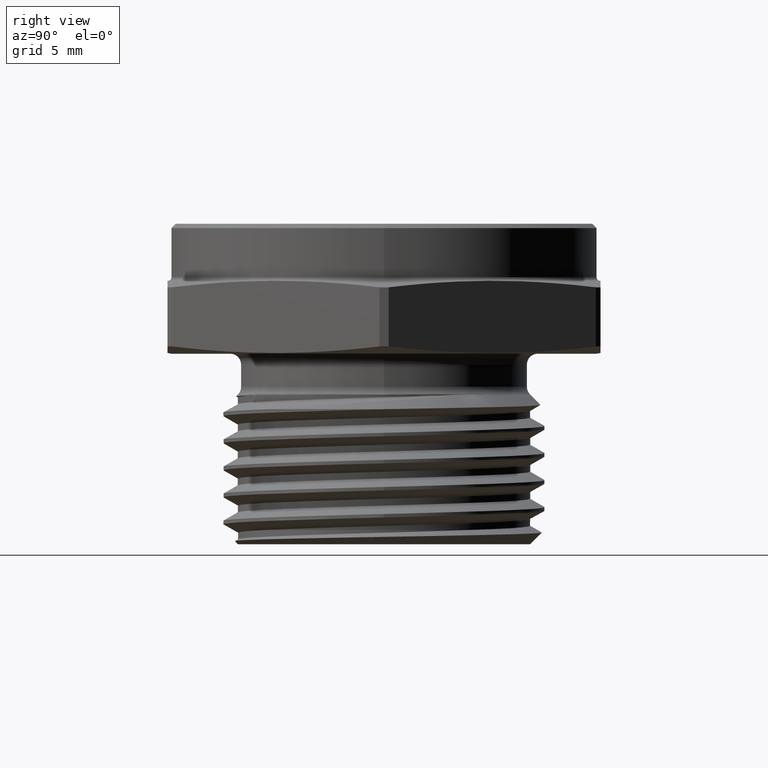
[diagram: clean part render]
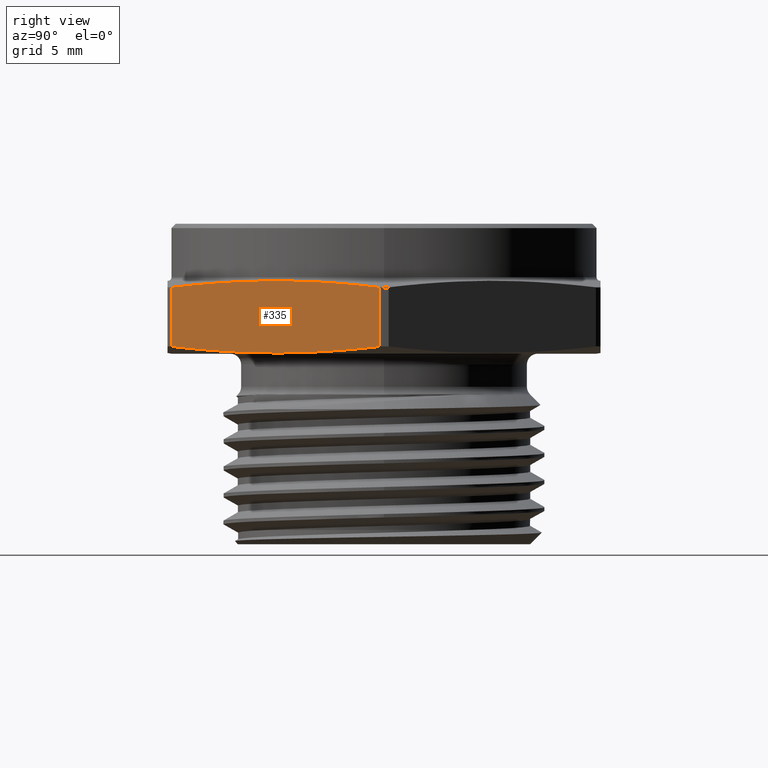
[diagram: same view with one face highlighted and labeled with its STEP entity id]
A machine part, right view. The second image highlights one B-rep face of the part: STEP entity #335.
In plain terms, the highlighted planar face has unit normal (-0.866, 0.5, 0).
Its self-contained STEP definition (entity closure, byte-faithful):
#24 = EDGE_LOOP ( 'NONE', ( #2526, #2527, #2528, #2529 ) ) ;
#235 = AXIS2_PLACEMENT_3D ( 'NONE', #1294, #1298, #1299 ) ;
#335 = ADVANCED_FACE ( 'NONE', ( #2148 ), #1292, .F. ) ;
#710 = CARTESIAN_POINT ( 'NONE',  ( 0.5712526473702337300, -0.01056139079652691400, -1.692951067439543800E-017 ) ) ;
#711 = DIRECTION ( 'NONE',  ( -1.224646799147349800E-016, -0.0000000000000000000, -1.000000000000000000 ) ) ;
#715 = CARTESIAN_POINT ( 'NONE',  ( 0.3178127473272076000, -0.4495321743362270500, 0.1579795259698087200 ) ) ;
#716 = CARTESIAN_POINT ( 'NONE',  ( 0.3408527382402100100, -0.4096257394689814500, 0.1618085153259697400 ) ) ;
#720 = CARTESIAN_POINT ( 'NONE',  ( 0.5251726655442291400, -0.09037426053101783900, 0.008191484674030307900 ) ) ;
#721 = CARTESIAN_POINT ( 'NONE',  ( 0.2947727564142051900, -0.4894386092034723700, 0.1532398578942974800 ) ) ;
#723 = CARTESIAN_POINT ( 'NONE',  ( 0.3869327200662148200, -0.3298128697344906400, 0.1670286922057679400 ) ) ;
#724 = CARTESIAN_POINT ( 'NONE',  ( 0.4330127018922195200, -0.2499999999999997200, 0.1697829593691818100 ) ) ;
#725 = CARTESIAN_POINT ( 'NONE',  ( 0.4790926837182244400, -0.1701871302655087700, 0.1670286922057679400 ) ) ;
#726 = CARTESIAN_POINT ( 'NONE',  ( 0.5251726655442292600, -0.09037426053101786600, 0.1618085153259696800 ) ) ;
#727 = CARTESIAN_POINT ( 'NONE',  ( 0.5482126564572313800, -0.05046782566377243400, 0.1579795259698086900 ) ) ;
#728 = CARTESIAN_POINT ( 'NONE',  ( 0.5712526473702339600, -0.01056139079652691800, 0.1532398578942974500 ) ) ;
#729 = CARTESIAN_POINT ( 'NONE',  ( 0.2947727564142051900, -0.4894386092034723700, 1.692951067439543800E-017 ) ) ;
#730 = CARTESIAN_POINT ( 'NONE',  ( 0.5482126564572312700, -0.05046782566377239200, 0.01202047403019134400 ) ) ;
#731 = DIRECTION ( 'NONE',  ( 1.224646799147349800E-016, 0.0000000000000000000, 1.000000000000000000 ) ) ;
#733 = CARTESIAN_POINT ( 'NONE',  ( 0.5712526473702339600, -0.01056139079652691800, 0.01676014210570252900 ) ) ;
#734 = CARTESIAN_POINT ( 'NONE',  ( 0.4790926837182242800, -0.1701871302655086600, 0.002971307794232091800 ) ) ;
#735 = CARTESIAN_POINT ( 'NONE',  ( 0.4330127018922196900, -0.2499999999999995300, 0.0002170406308182330700 ) ) ;
#736 = CARTESIAN_POINT ( 'NONE',  ( 0.3869327200662147100, -0.3298128697344907000, 0.002971307794232114400 ) ) ;
#737 = CARTESIAN_POINT ( 'NONE',  ( 0.3408527382402099000, -0.4096257394689815100, 0.008191484674030337400 ) ) ;
#738 = CARTESIAN_POINT ( 'NONE',  ( 0.3178127473272076000, -0.4495321743362270000, 0.01202047403019136100 ) ) ;
#739 = CARTESIAN_POINT ( 'NONE',  ( 0.2947727564142051900, -0.4894386092034723700, 0.01676014210570252900 ) ) ;
#857 = LINE ( 'NONE', #710, #859 ) ;
#858 = LINE ( 'NONE', #729, #862 ) ;
#859 = VECTOR ( 'NONE', #711, 39.37007874015748100 ) ;
#862 = VECTOR ( 'NONE', #731, 39.37007874015748100 ) ;
#927 = B_SPLINE_CURVE_WITH_KNOTS ( 'NONE', 3,
 ( #721, #715, #716, #723, #724, #725, #726, #727, #728 ),
 .UNSPECIFIED., .F., .F.,
 ( 4, 2, 1, 2, 4 ),
 ( 1.944233093217346600E-006, 0.003513238848234785900, 0.007024533463376355000, 0.01053582807851792400, 0.01404712269365949100 ),
 .UNSPECIFIED. ) ;
#928 = B_SPLINE_CURVE_WITH_KNOTS ( 'NONE', 3,
 ( #733, #730, #720, #734, #735, #736, #737, #738, #739 ),
 .UNSPECIFIED., .F., .F.,
 ( 4, 2, 1, 2, 4 ),
 ( 1.944233093211303800E-006, 0.003513238848234779800, 0.007024533463376348900, 0.01053582807851791800, 0.01404712269365948600 ),
 .UNSPECIFIED. ) ;
#1292 = PLANE ( 'NONE',  #235 ) ;
#1294 = CARTESIAN_POINT ( 'NONE',  ( 0.2886751345948131400, -0.5000000000000001100, 0.1699999999999999800 ) ) ;
#1298 = DIRECTION ( 'NONE',  ( -0.8660254037844391500, 0.4999999999999993900, 0.0000000000000000000 ) ) ;
#1299 = DIRECTION ( 'NONE',  ( -0.4999999999999993900, -0.8660254037844391500, 0.0000000000000000000 ) ) ;
#1828 = CARTESIAN_POINT ( 'NONE',  ( 0.5712526473702339600, -0.01056139079652691800, 0.01676014210570252900 ) ) ;
#1852 = CARTESIAN_POINT ( 'NONE',  ( 0.2947727564142051900, -0.4894386092034723700, 0.01676014210570252900 ) ) ;
#1859 = CARTESIAN_POINT ( 'NONE',  ( 0.5712526473702339600, -0.01056139079652691800, 0.1532398578942974500 ) ) ;
#1870 = CARTESIAN_POINT ( 'NONE',  ( 0.2947727564142051900, -0.4894386092034723700, 0.1532398578942974800 ) ) ;
#2148 = FACE_OUTER_BOUND ( 'NONE', #24, .T. ) ;
#2411 = EDGE_CURVE ( 'NONE', #2966, #2486, #857, .T. ) ;
#2412 = EDGE_CURVE ( 'NONE', #2978, #2966, #927, .T. ) ;
#2413 = EDGE_CURVE ( 'NONE', #2957, #2978, #858, .T. ) ;
#2414 = EDGE_CURVE ( 'NONE', #2486, #2957, #928, .T. ) ;
#2486 = VERTEX_POINT ( 'NONE', #1828 ) ;
#2526 = ORIENTED_EDGE ( 'NONE', *, *, #2411, .F. ) ;
#2527 = ORIENTED_EDGE ( 'NONE', *, *, #2412, .F. ) ;
#2528 = ORIENTED_EDGE ( 'NONE', *, *, #2413, .F. ) ;
#2529 = ORIENTED_EDGE ( 'NONE', *, *, #2414, .F. ) ;
#2957 = VERTEX_POINT ( 'NONE', #1852 ) ;
#2966 = VERTEX_POINT ( 'NONE', #1859 ) ;
#2978 = VERTEX_POINT ( 'NONE', #1870 ) ;